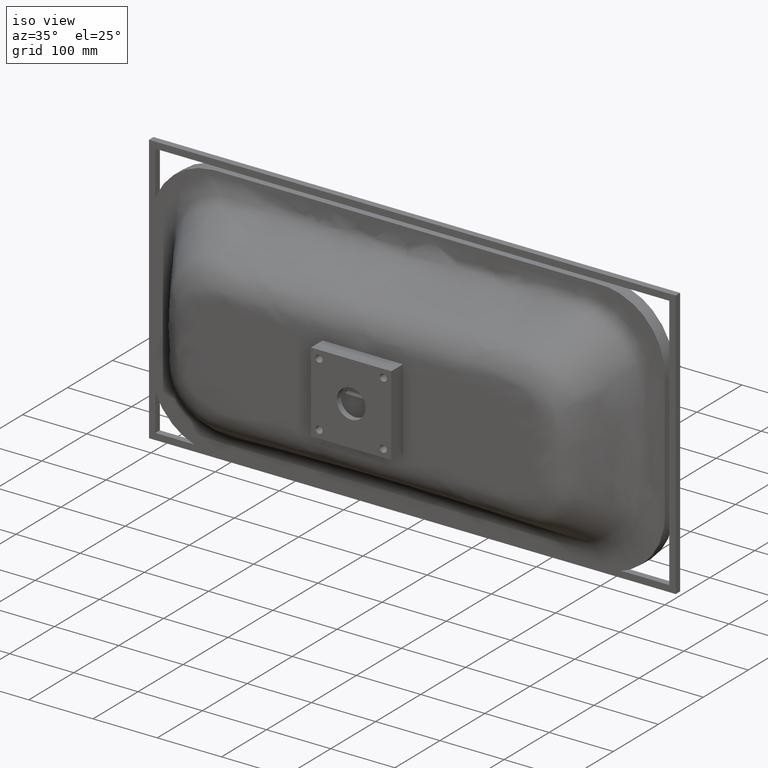
[diagram: clean part render]
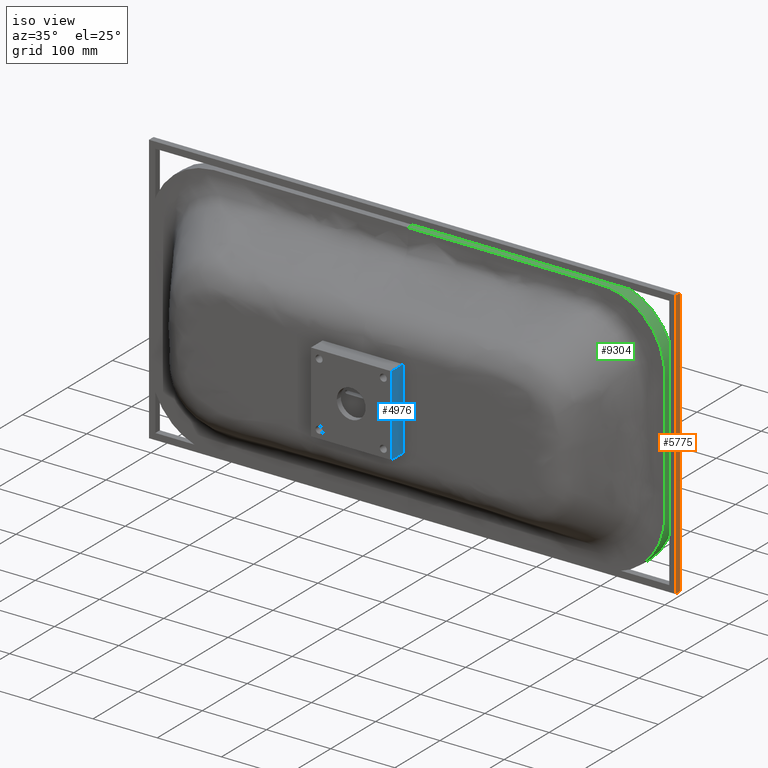
[diagram: same view with three faces highlighted in distinct colors, each labeled with its STEP entity id]
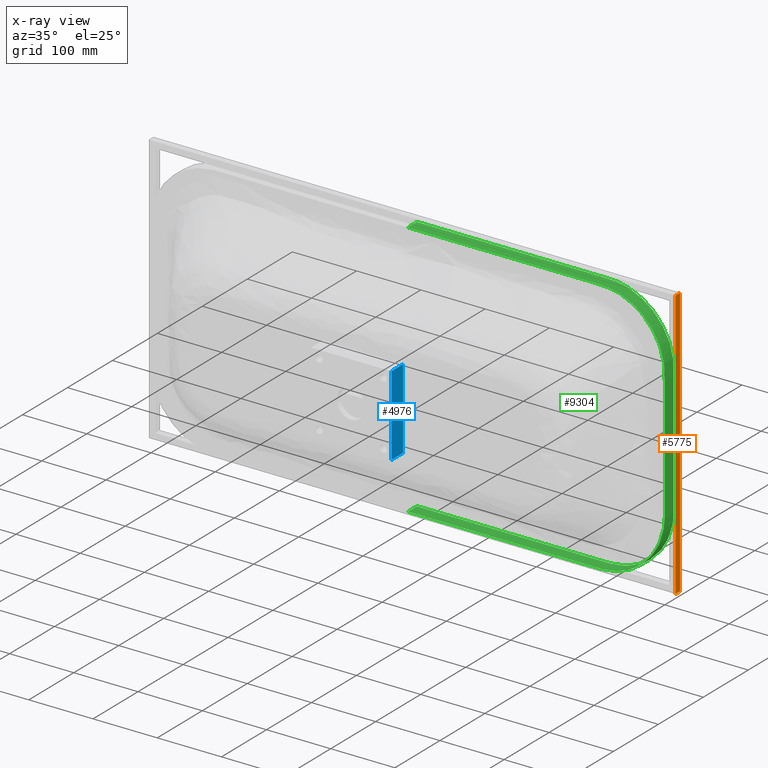
[diagram: x-ray of the same camera — body ghosted, the three highlighted faces saturated]
A machine part, iso view with three faces highlighted in distinct colors.
The next image is the same camera in x-ray (body ghosted, the three faces saturated) — at least one of them is partly hidden behind the body in this view.
Their STEP definitions:

[orange] entity #5775 — the highlighted planar face has unit normal (1, 0, -0).
#78 = DIRECTION ( 'NONE',  ( -2.775557561562891400E-015, 1.000000000000000000, -5.551115123125683100E-016 ) ) ;
#85 = CARTESIAN_POINT ( 'NONE',  ( 410.0000000000010800, 110.0000000000024000, 209.9999999999986600 ) ) ;
#115 = CARTESIAN_POINT ( 'NONE',  ( 409.9999999999996600, 120.0000000000021700, -210.0000000000014800 ) ) ;
#311 = ORIENTED_EDGE ( 'NONE', *, *, #2814, .F. ) ;
#627 = DIRECTION ( 'NONE',  ( -3.413935800722356400E-015, -5.286776307738838600E-016, -1.000000000000000000 ) ) ;
#1051 = CARTESIAN_POINT ( 'NONE',  ( 410.0000000000010800, 110.0000000000024000, 209.9999999999986600 ) ) ;
#1499 = EDGE_CURVE ( 'NONE', #5514, #8951, #8544, .T. ) ;
#1518 = CARTESIAN_POINT ( 'NONE',  ( 409.9999999999996600, 110.0000000000021700, -210.0000000000014800 ) ) ;
#2007 = CARTESIAN_POINT ( 'NONE',  ( 409.9999999999996600, 110.0000000000021700, -210.0000000000014800 ) ) ;
#2114 = DIRECTION ( 'NONE',  ( 2.775557561562889400E-015, -1.000000000000000000, -9.475575326385193400E-030 ) ) ;
#2122 = DIRECTION ( 'NONE',  ( 1.000000000000000000, 2.775557561562889400E-015, -3.413935800722357900E-015 ) ) ;
#2189 = PLANE ( 'NONE',  #7084 ) ;
#2196 = VERTEX_POINT ( 'NONE', #5873 ) ;
#2306 = CARTESIAN_POINT ( 'NONE',  ( 409.9999999999996600, 110.0000000000021700, -210.0000000000014800 ) ) ;
#2407 = FACE_OUTER_BOUND ( 'NONE', #9153, .T. ) ;
#2445 = ORIENTED_EDGE ( 'NONE', *, *, #8348, .T. ) ;
#2814 = EDGE_CURVE ( 'NONE', #8951, #5559, #7496, .T. ) ;
#3301 = ORIENTED_EDGE ( 'NONE', *, *, #8698, .T. ) ;
#3614 = ORIENTED_EDGE ( 'NONE', *, *, #1499, .F. ) ;
#4819 = LINE ( 'NONE', #2007, #5136 ) ;
#5018 = CARTESIAN_POINT ( 'NONE',  ( 410.0000000000010800, 120.0000000000024000, 209.9999999999986600 ) ) ;
#5136 = VECTOR ( 'NONE', #7441, 1000.000000000000000 ) ;
#5211 = VECTOR ( 'NONE', #627, 1000.000000000000000 ) ;
#5514 = VERTEX_POINT ( 'NONE', #85 ) ;
#5559 = VERTEX_POINT ( 'NONE', #115 ) ;
#5775 = ADVANCED_FACE ( 'NONE', ( #2407 ), #2189, .T. ) ;
#5873 = CARTESIAN_POINT ( 'NONE',  ( 409.9999999999996600, 110.0000000000021700, -210.0000000000014800 ) ) ;
#5968 = DIRECTION ( 'NONE',  ( -3.413935800722356400E-015, -5.286776307738838600E-016, -1.000000000000000000 ) ) ;
#6285 = CARTESIAN_POINT ( 'NONE',  ( 409.9999999999996600, 120.0000000000021700, -210.0000000000014800 ) ) ;
#6362 = LINE ( 'NONE', #1518, #5211 ) ;
#7071 = VECTOR ( 'NONE', #5968, 1000.000000000000000 ) ;
#7084 = AXIS2_PLACEMENT_3D ( 'NONE', #2306, #2122, #2114 ) ;
#7441 = DIRECTION ( 'NONE',  ( -2.775557561562891400E-015, 1.000000000000000000, -5.551115123125683100E-016 ) ) ;
#7496 = LINE ( 'NONE', #6285, #7071 ) ;
#8348 = EDGE_CURVE ( 'NONE', #5514, #2196, #6362, .T. ) ;
#8354 = VECTOR ( 'NONE', #78, 1000.000000000000000 ) ;
#8544 = LINE ( 'NONE', #1051, #8354 ) ;
#8698 = EDGE_CURVE ( 'NONE', #2196, #5559, #4819, .T. ) ;
#8951 = VERTEX_POINT ( 'NONE', #5018 ) ;
#9153 = EDGE_LOOP ( 'NONE', ( #311, #3614, #2445, #3301 ) ) ;

[blue] entity #4976 — the highlighted planar face has unit normal (-1, 0, 0).
#152 = VERTEX_POINT ( 'NONE', #1084 ) ;
#153 = CARTESIAN_POINT ( 'NONE',  ( 62.49999999999978700, -25.99999999999999600, -62.50000000000020600 ) ) ;
#193 = DIRECTION ( 'NONE',  ( 3.413935800722356400E-015, 0.0000000000000000000, 1.000000000000000000 ) ) ;
#200 = PLANE ( 'NONE',  #3352 ) ;
#221 = CARTESIAN_POINT ( 'NONE',  ( 62.49999999999978700, 0.0000000000000000000, -62.50000000000020600 ) ) ;
#229 = DIRECTION ( 'NONE',  ( -3.413935800722356400E-015, 0.0000000000000000000, -1.000000000000000000 ) ) ;
#243 = DIRECTION ( 'NONE',  ( -1.000000000000000000, 0.0000000000000000000, 3.413935800722356400E-015 ) ) ;
#368 = LINE ( 'NONE', #2332, #6092 ) ;
#413 = EDGE_LOOP ( 'NONE', ( #532, #10031, #1338, #1703 ) ) ;
#532 = ORIENTED_EDGE ( 'NONE', *, *, #5261, .T. ) ;
#539 = VERTEX_POINT ( 'NONE', #8892 ) ;
#1014 = DIRECTION ( 'NONE',  ( 0.0000000000000000000, -1.000000000000000000, -0.0000000000000000000 ) ) ;
#1084 = CARTESIAN_POINT ( 'NONE',  ( 62.49999999999978700, 0.0000000000000000000, -62.50000000000020600 ) ) ;
#1087 = CARTESIAN_POINT ( 'NONE',  ( 62.49999999999978700, 0.0000000000000000000, -62.50000000000020600 ) ) ;
#1338 = ORIENTED_EDGE ( 'NONE', *, *, #9091, .F. ) ;
#1703 = ORIENTED_EDGE ( 'NONE', *, *, #5674, .T. ) ;
#1900 = VERTEX_POINT ( 'NONE', #6911 ) ;
#2039 = EDGE_CURVE ( 'NONE', #152, #4397, #8286, .T. ) ;
#2303 = DIRECTION ( 'NONE',  ( 0.0000000000000000000, -1.000000000000000000, -0.0000000000000000000 ) ) ;
#2332 = CARTESIAN_POINT ( 'NONE',  ( 62.50000000000020600, 0.0000000000000000000, 62.49999999999978700 ) ) ;
#2350 = CARTESIAN_POINT ( 'NONE',  ( 62.49999999999978700, 0.0000000000000000000, -62.50000000000020600 ) ) ;
#3067 = DIRECTION ( 'NONE',  ( -3.413935800722356400E-015, 0.0000000000000000000, -1.000000000000000000 ) ) ;
#3352 = AXIS2_PLACEMENT_3D ( 'NONE', #221, #243, #193 ) ;
#3882 = VECTOR ( 'NONE', #1014, 1000.000000000000000 ) ;
#4397 = VERTEX_POINT ( 'NONE', #9016 ) ;
#4695 = VECTOR ( 'NONE', #3067, 1000.000000000000000 ) ;
#4862 = LINE ( 'NONE', #2350, #4695 ) ;
#4976 = ADVANCED_FACE ( 'NONE', ( #5193 ), #200, .F. ) ;
#5193 = FACE_OUTER_BOUND ( 'NONE', #413, .T. ) ;
#5261 = EDGE_CURVE ( 'NONE', #539, #4397, #6228, .T. ) ;
#5674 = EDGE_CURVE ( 'NONE', #1900, #539, #368, .T. ) ;
#6092 = VECTOR ( 'NONE', #2303, 1000.000000000000000 ) ;
#6221 = VECTOR ( 'NONE', #229, 1000.000000000000000 ) ;
#6228 = LINE ( 'NONE', #153, #6221 ) ;
#6911 = CARTESIAN_POINT ( 'NONE',  ( 62.50000000000020600, 0.0000000000000000000, 62.49999999999978700 ) ) ;
#8286 = LINE ( 'NONE', #1087, #3882 ) ;
#8892 = CARTESIAN_POINT ( 'NONE',  ( 62.50000000000020600, -25.99999999999999600, 62.49999999999978700 ) ) ;
#9016 = CARTESIAN_POINT ( 'NONE',  ( 62.49999999999978700, -25.99999999999999600, -62.50000000000020600 ) ) ;
#9091 = EDGE_CURVE ( 'NONE', #1900, #152, #4862, .T. ) ;
#10031 = ORIENTED_EDGE ( 'NONE', *, *, #2039, .F. ) ;

[green] entity #9304 — the highlighted face is a freeform B-spline surface patch.
#14 = CARTESIAN_POINT ( 'NONE',  ( -387.6607435241640500, 106.6666666666674200, 150.4493998604116600 ) ) ;
#17 = CARTESIAN_POINT ( 'NONE',  ( -30.00000000000068200, 113.3333333333339300, -199.9999999999999700 ) ) ;
#38 = CARTESIAN_POINT ( 'NONE',  ( -15.00000000000067300, 113.3333333333339400, -199.9999999999999700 ) ) ;
#68 = CARTESIAN_POINT ( 'NONE',  ( -5.000000000000730100, 113.3333333333339500, -200.0000000000000000 ) ) ;
#99 = CARTESIAN_POINT ( 'NONE',  ( -397.6520662592157600, 106.6666666666674000, 126.2865120157434000 ) ) ;
#135 = CARTESIAN_POINT ( 'NONE',  ( -6.784503514545292500E-013, 113.3333333333339500, -200.0000000000000000 ) ) ;
#240 = CARTESIAN_POINT ( 'NONE',  ( -6.775829897165408500E-013, 120.0000000000010500, -200.0000000000000000 ) ) ;
#249 = CARTESIAN_POINT ( 'NONE',  ( -400.0000000000003400, 106.6666666666673800, 108.8402994666678700 ) ) ;
#268 = ORIENTED_EDGE ( 'NONE', *, *, #2862, .F. ) ;
#269 = CARTESIAN_POINT ( 'NONE',  ( 2.210455197844870900E-013, 100.0000000000000000, 200.0000000000000300 ) ) ;
#272 = CARTESIAN_POINT ( 'NONE',  ( 4.999999999999293900, 120.0000000000010700, -200.0000000000000300 ) ) ;
#295 = CARTESIAN_POINT ( 'NONE',  ( -400.0000000000004000, 106.6666666666674400, 66.66666666648954700 ) ) ;
#309 = CARTESIAN_POINT ( 'NONE',  ( 14.99999999999931800, 120.0000000000010500, -200.0000000000000600 ) ) ;
#332 = CARTESIAN_POINT ( 'NONE',  ( 29.99999999999930400, 120.0000000000010900, -200.0000000000001100 ) ) ;
#346 = CARTESIAN_POINT ( 'NONE',  ( 44.99999999999938200, 120.0000000000011200, -200.0000000000001100 ) ) ;
#377 = CARTESIAN_POINT ( 'NONE',  ( 134.9999999999993200, 120.0000000000013400, -200.0000000000003400 ) ) ;
#396 = CARTESIAN_POINT ( 'NONE',  ( 219.9999999999991500, 120.0000000000017800, -200.0000000000004300 ) ) ;
#397 = CARTESIAN_POINT ( 'NONE',  ( -400.0000000000005700, 106.6666666666673500, -1.772693103418987400E-010 ) ) ;
#408 = CARTESIAN_POINT ( 'NONE',  ( -6.938893903907228400E-013, 120.0000000000012900, 200.0000000000000000 ) ) ;
#412 = CARTESIAN_POINT ( 'NONE',  ( 308.8402994666660100, 120.0000000000018800, -200.0000000000009900 ) ) ;
#427 = B_SPLINE_SURFACE_WITH_KNOTS ( 'NONE', 3, 3, ( 
 ( #1869, #2011, #1603, #1592, #1511, #1498, #1470, #1440, #1417, #1406, #1386, #1321, #1301, #1292, #1283, #1267, #1256, #1245, #1222, #1204, #1177, #1158, #1148, #1106, #1091, #1075, #1057, #999, #946, #934, #915, #838, #818, #776, #728, #697, #566, #553, #520, #511, #499, #477, #444, #412, #396, #377, #346, #332, #309, #272, #240 ),
 ( #135, #68, #38, #17, #9934, #9839, #9790, #9723, #9711, #9669, #9445, #8929, #8905, #8879, #8853, #8766, #8177, #8048, #8009, #7913, #7735, #7287, #7202, #6998, #6328, #6292, #6266, #6243, #5997, #5987, #5724, #5629, #5594, #5554, #5464, #5033, #4903, #4716, #4706, #4363, #3975, #3935, #3869, #3697, #3245, #3204, #3149, #3138, #3102, #3043, #3012 ),
 ( #3004, #2684, #2675, #2641, #2473, #2402, #2390, #2368, #1976, #1767, #1593, #1478, #1290, #1076, #439, #397, #295, #249, #99, #14, #9497, #8614, #3694, #10151, #10124, #10117, #10105, #10092, #10088, #10087, #10065, #10057, #10055, #10037, #10029, #10027, #10006, #9996, #9995, #9970, #9962, #9961, #9940, #9932, #9908, #9899, #9874, #9863, #9854, #9837, #9828 ),
 ( #9800, #9788, #9761, #9750, #9749, #9721, #9709, #9696, #9679, #9667, #9656, #9642, #9632, #9621, #9619, #9607, #9598, #9587, #9573, #9566, #9556, #9552, #9537, #9526, #9516, #9499, #9490, #9475, #9455, #9432, #9414, #9394, #9392, #9357, #9339, #9317, #9316, #9301, #9288, #9281, #9250, #9240, #9239, #9226, #9218, #9210, #9208, #9185, #9178, #9176, #9149 ) ),
 .UNSPECIFIED., .F., .T., .F.,
 ( 4, 4 ),
 ( 4, 1, 1, 1, 1, 2, 1, 1, 1, 1, 1, 2, 1, 2, 1, 1, 1, 1, 1, 2, 1, 2, 1, 1, 1, 1, 1, 2, 1, 2, 1, 1, 1, 1, 1, 2, 1, 1, 1, 1, 4 ),
 ( 0.0000000000000000000, 1.000000000000000000 ),
 ( 0.0000000000000000000, 0.006706903432371902300, 0.01341380686474358300, 0.02012071029711548500, 0.02682761372948738700, 0.1341380686474368300, 0.1459962756146732100, 0.1578544825819094800, 0.1697126895491458700, 0.1815708965163822500, 0.1934291034836185300, 0.2052873104508549100, 0.2499999999997610200, 0.2947126895491456500, 0.3065708965163819200, 0.3184291034836181900, 0.3302873104508545800, 0.3421455174180908500, 0.3540037243853271200, 0.3658619313525634000, 0.5000000000000000000, 0.6341380686474370500, 0.6459962756146733200, 0.6578544825819095900, 0.6697126895491458700, 0.6815708965163821400, 0.6934291034836184100, 0.7052873104508546900, 0.7499999999999830100, 0.7947126895491455300, 0.8065708965163818100, 0.8184291034836180800, 0.8302873104508543500, 0.8421455174180906300, 0.8540037243853270100, 0.8658619313525632900, 0.9731723862705126100, 0.9798792897028845200, 0.9865861931352563100, 0.9932930965676282100, 1.000000000000000000 ),
 .UNSPECIFIED. ) ;
#439 = CARTESIAN_POINT ( 'NONE',  ( -400.0000000000008500, 106.6666666666672500, -66.66666666684383800 ) ) ;
#444 = CARTESIAN_POINT ( 'NONE',  ( 326.2865120157414900, 120.0000000000018900, -197.6520662592164700 ) ) ;
#477 = CARTESIAN_POINT ( 'NONE',  ( 350.4493998604099300, 120.0000000000020500, -187.6607435241647600 ) ) ;
#499 = CARTESIAN_POINT ( 'NONE',  ( 371.5384813318378300, 120.0000000000020500, -171.5384813318397300 ) ) ;
#511 = CARTESIAN_POINT ( 'NONE',  ( 387.6607435241632500, 120.0000000000021700, -150.4493998604117500 ) ) ;
#520 = CARTESIAN_POINT ( 'NONE',  ( 397.6520662592150800, 120.0000000000021700, -126.2865120157435100 ) ) ;
#553 = CARTESIAN_POINT ( 'NONE',  ( 399.9999999999996600, 120.0000000000022000, -108.8402994666680100 ) ) ;
#566 = CARTESIAN_POINT ( 'NONE',  ( 400.0000000000000000, 120.0000000000022200, -66.66666666665528900 ) ) ;
#592 = B_SPLINE_CURVE_WITH_KNOTS ( 'NONE', 3,
 ( #6322, #6185, #6411, #6455, #5567, #4792, #6609, #6448, #8824, #4698, #5412, #3595, #3561, #5249, #3619, #3927, #3525, #3725, #3660, #6522, #6593, #6578, #6509, #6370, #6558, #6319, #6493 ),
 .UNSPECIFIED., .F., .F.,
 ( 4, 2, 1, 1, 1, 1, 1, 2, 1, 2, 1, 1, 1, 1, 1, 2, 1, 1, 1, 1, 4 ),
 ( 0.5000000000000000000, 0.6341380686474370500, 0.6459962756146733200, 0.6578544825819095900, 0.6697126895491458700, 0.6815708965163821400, 0.6934291034836184100, 0.7052873104508546900, 0.7499999999999830100, 0.7947126895491455300, 0.8065708965163818100, 0.8184291034836180800, 0.8302873104508543500, 0.8421455174180906300, 0.8540037243853270100, 0.8658619313525632900, 0.9731723862705126100, 0.9798792897028845200, 0.9865861931352563100, 0.9932930965676282100, 1.000000000000000000 ),
 .UNSPECIFIED. ) ;
#697 = CARTESIAN_POINT ( 'NONE',  ( 400.0000000000004000, 120.0000000000023300, 1.132566262995737700E-011 ) ) ;
#728 = CARTESIAN_POINT ( 'NONE',  ( 400.0000000000004500, 120.0000000000023900, 66.66666666667794100 ) ) ;
#776 = CARTESIAN_POINT ( 'NONE',  ( 400.0000000000004000, 120.0000000000023000, 108.8402994666651300 ) ) ;
#818 = CARTESIAN_POINT ( 'NONE',  ( 397.6520662592157600, 120.0000000000023400, 126.2865120157406300 ) ) ;
#838 = CARTESIAN_POINT ( 'NONE',  ( 387.6607435241642200, 120.0000000000023300, 150.4493998604089000 ) ) ;
#915 = CARTESIAN_POINT ( 'NONE',  ( 371.5384813318391400, 120.0000000000022700, 171.5384813318371200 ) ) ;
#934 = CARTESIAN_POINT ( 'NONE',  ( 350.4493998604112300, 120.0000000000022600, 187.6607435241623400 ) ) ;
#946 = CARTESIAN_POINT ( 'NONE',  ( 326.2865120157429100, 120.0000000000021500, 197.6520662592141700 ) ) ;
#999 = CARTESIAN_POINT ( 'NONE',  ( 308.8402994666673700, 120.0000000000021000, 199.9999999999987800 ) ) ;
#1057 = CARTESIAN_POINT ( 'NONE',  ( 199.9999999999999100, 120.0000000000018600, 199.9999999999996600 ) ) ;
#1075 = CARTESIAN_POINT ( 'NONE',  ( -4.343747583845929500E-013, 120.0000000000012100, 199.9999999999998900 ) ) ;
#1076 = CARTESIAN_POINT ( 'NONE',  ( -400.0000000000010800, 106.6666666666672500, -108.8402994666652600 ) ) ;
#1091 = CARTESIAN_POINT ( 'NONE',  ( -200.0000000000005400, 120.0000000000009900, 200.0000000000007700 ) ) ;
#1106 = CARTESIAN_POINT ( 'NONE',  ( -308.8402994666668100, 120.0000000000004000, 200.0000000000009400 ) ) ;
#1148 = CARTESIAN_POINT ( 'NONE',  ( -326.2865120157422900, 120.0000000000003600, 197.6520662592165000 ) ) ;
#1158 = CARTESIAN_POINT ( 'NONE',  ( -350.4493998604106100, 120.0000000000002800, 187.6607435241647600 ) ) ;
#1177 = CARTESIAN_POINT ( 'NONE',  ( -371.5384813318384500, 120.0000000000002000, 171.5384813318397300 ) ) ;
#1204 = CARTESIAN_POINT ( 'NONE',  ( -387.6607435241640500, 120.0000000000001700, 150.4493998604116600 ) ) ;
#1222 = CARTESIAN_POINT ( 'NONE',  ( -397.6520662592155900, 120.0000000000001100, 126.2865120157434000 ) ) ;
#1245 = CARTESIAN_POINT ( 'NONE',  ( -400.0000000000002800, 120.0000000000000900, 108.8402994666678900 ) ) ;
#1256 = CARTESIAN_POINT ( 'NONE',  ( -400.0000000000001100, 120.0000000000000900, 66.66666666648949000 ) ) ;
#1267 = CARTESIAN_POINT ( 'NONE',  ( -400.0000000000002800, 120.0000000000000000, -1.773942104321690700E-010 ) ) ;
#1283 = CARTESIAN_POINT ( 'NONE',  ( -400.0000000000008000, 119.9999999999999600, -66.66666666684393800 ) ) ;
#1290 = CARTESIAN_POINT ( 'NONE',  ( -397.6520662592165000, 106.6666666666672300, -126.2865120157407500 ) ) ;
#1292 = CARTESIAN_POINT ( 'NONE',  ( -400.0000000000010200, 119.9999999999999900, -108.8402994666652600 ) ) ;
#1301 = CARTESIAN_POINT ( 'NONE',  ( -397.6520662592165500, 119.9999999999999400, -126.2865120157407800 ) ) ;
#1321 = CARTESIAN_POINT ( 'NONE',  ( -387.6607435241649000, 120.0000000000000300, -150.4493998604091000 ) ) ;
#1386 = CARTESIAN_POINT ( 'NONE',  ( -371.5384813318397100, 120.0000000000000000, -171.5384813318372900 ) ) ;
#1394 = VERTEX_POINT ( 'NONE', #408 ) ;
#1406 = CARTESIAN_POINT ( 'NONE',  ( -350.4493998604119700, 120.0000000000001100, -187.6607435241624000 ) ) ;
#1417 = CARTESIAN_POINT ( 'NONE',  ( -326.2865120157435400, 120.0000000000001100, -197.6520662592143400 ) ) ;
#1440 = CARTESIAN_POINT ( 'NONE',  ( -308.8402994666680000, 120.0000000000001700, -199.9999999999988900 ) ) ;
#1470 = CARTESIAN_POINT ( 'NONE',  ( -220.0000000000015300, 120.0000000000004700, -199.9999999999996300 ) ) ;
#1478 = CARTESIAN_POINT ( 'NONE',  ( -387.6607435241649000, 106.6666666666672700, -150.4493998604091300 ) ) ;
#1498 = CARTESIAN_POINT ( 'NONE',  ( -135.0000000000010500, 120.0000000000006700, -199.9999999999996300 ) ) ;
#1511 = CARTESIAN_POINT ( 'NONE',  ( -45.00000000000069600, 120.0000000000009100, -199.9999999999998600 ) ) ;
#1592 = CARTESIAN_POINT ( 'NONE',  ( -30.00000000000068600, 120.0000000000009500, -199.9999999999998900 ) ) ;
#1593 = CARTESIAN_POINT ( 'NONE',  ( -371.5384813318397600, 106.6666666666671700, -171.5384813318372300 ) ) ;
#1603 = CARTESIAN_POINT ( 'NONE',  ( -15.00000000000067900, 120.0000000000009900, -199.9999999999999400 ) ) ;
#1767 = CARTESIAN_POINT ( 'NONE',  ( -350.4493998604119700, 106.6666666666672100, -187.6607435241624000 ) ) ;
#1786 = VERTEX_POINT ( 'NONE', #269 ) ;
#1836 = ORIENTED_EDGE ( 'NONE', *, *, #7316, .T. ) ;
#1869 = CARTESIAN_POINT ( 'NONE',  ( -6.775829897165408500E-013, 120.0000000000010500, -200.0000000000000000 ) ) ;
#1976 = CARTESIAN_POINT ( 'NONE',  ( -326.2865120157435400, 106.6666666666671300, -197.6520662592143400 ) ) ;
#2011 = CARTESIAN_POINT ( 'NONE',  ( -5.000000000000732700, 120.0000000000010400, -199.9999999999999700 ) ) ;
#2368 = CARTESIAN_POINT ( 'NONE',  ( -308.8402994666680600, 106.6666666666671400, -199.9999999999988900 ) ) ;
#2390 = CARTESIAN_POINT ( 'NONE',  ( -220.0000000000021000, 106.6666666666670600, -199.9999999999993500 ) ) ;
#2402 = CARTESIAN_POINT ( 'NONE',  ( -135.0000000000011900, 106.6666666666670000, -199.9999999999999400 ) ) ;
#2413 = B_SPLINE_CURVE_WITH_KNOTS ( 'NONE', 3,
 ( #9329, #9344, #9291, #9283, #9280, #9272, #9270, #9254, #9242, #9232, #9229, #9221, #9212, #9209, #9202, #9200, #9189, #9180, #9177, #9163, #9154, #9142, #9129, #9127, #9109, #9095, #9083 ),
 .UNSPECIFIED., .F., .F.,
 ( 4, 2, 1, 1, 1, 1, 1, 2, 1, 2, 1, 1, 1, 1, 1, 2, 1, 1, 1, 1, 4 ),
 ( 0.5000000000000002200, 0.6341380686474371600, 0.6459962756146735400, 0.6578544825819097100, 0.6697126895491459800, 0.6815708965163822500, 0.6934291034836185300, 0.7052873104508548000, 0.7499999999999831200, 0.7947126895491456500, 0.8065708965163819200, 0.8184291034836181900, 0.8302873104508543500, 0.8421455174180907400, 0.8540037243853271200, 0.8658619313525632900, 0.9731723862705126100, 0.9798792897028845200, 0.9865861931352563100, 0.9932930965676282100, 1.000000000000000000 ),
 .UNSPECIFIED. ) ;
#2473 = CARTESIAN_POINT ( 'NONE',  ( -45.00000000000070300, 106.6666666666669100, -200.0000000000000300 ) ) ;
#2617 = ORIENTED_EDGE ( 'NONE', *, *, #9385, .F. ) ;
#2641 = CARTESIAN_POINT ( 'NONE',  ( -30.00000000000067900, 106.6666666666669100, -200.0000000000000300 ) ) ;
#2675 = CARTESIAN_POINT ( 'NONE',  ( -15.00000000000066800, 106.6666666666669000, -200.0000000000000300 ) ) ;
#2684 = CARTESIAN_POINT ( 'NONE',  ( -5.000000000000727400, 106.6666666666669000, -200.0000000000000000 ) ) ;
#2818 = EDGE_CURVE ( 'NONE', #1394, #1786, #6375, .T. ) ;
#2862 = EDGE_CURVE ( 'NONE', #1394, #3744, #592, .T. ) ;
#3004 = CARTESIAN_POINT ( 'NONE',  ( -6.793177131925176600E-013, 106.6666666666668800, -200.0000000000000000 ) ) ;
#3012 = CARTESIAN_POINT ( 'NONE',  ( -6.784503514545292500E-013, 113.3333333333339500, -200.0000000000000000 ) ) ;
#3043 = CARTESIAN_POINT ( 'NONE',  ( 4.999999999999289500, 113.3333333333339500, -200.0000000000000300 ) ) ;
#3102 = CARTESIAN_POINT ( 'NONE',  ( 14.99999999999930500, 113.3333333333339500, -200.0000000000000300 ) ) ;
#3138 = CARTESIAN_POINT ( 'NONE',  ( 29.99999999999928200, 113.3333333333339700, -200.0000000000000600 ) ) ;
#3149 = CARTESIAN_POINT ( 'NONE',  ( 44.99999999999934600, 113.3333333333339800, -200.0000000000000600 ) ) ;
#3204 = CARTESIAN_POINT ( 'NONE',  ( 134.9999999999992300, 113.3333333333340800, -200.0000000000002600 ) ) ;
#3245 = CARTESIAN_POINT ( 'NONE',  ( 219.9999999999990900, 113.3333333333343100, -200.0000000000005700 ) ) ;
#3525 = CARTESIAN_POINT ( 'NONE',  ( 371.5384813318378300, 120.0000000000020500, -171.5384813318397300 ) ) ;
#3561 = CARTESIAN_POINT ( 'NONE',  ( 400.0000000000000000, 120.0000000000022200, -66.66666666665530300 ) ) ;
#3595 = CARTESIAN_POINT ( 'NONE',  ( 400.0000000000004000, 120.0000000000023300, 1.132566262995738300E-011 ) ) ;
#3619 = CARTESIAN_POINT ( 'NONE',  ( 397.6520662592150800, 120.0000000000021700, -126.2865120157435100 ) ) ;
#3660 = CARTESIAN_POINT ( 'NONE',  ( 326.2865120157414900, 120.0000000000018900, -197.6520662592165000 ) ) ;
#3694 = CARTESIAN_POINT ( 'NONE',  ( -326.2865120157422900, 106.6666666666673400, 197.6520662592164400 ) ) ;
#3697 = CARTESIAN_POINT ( 'NONE',  ( 308.8402994666659500, 113.3333333333342700, -200.0000000000009900 ) ) ;
#3725 = CARTESIAN_POINT ( 'NONE',  ( 350.4493998604099300, 120.0000000000020500, -187.6607435241647600 ) ) ;
#3744 = VERTEX_POINT ( 'NONE', #9604 ) ;
#3787 = CARTESIAN_POINT ( 'NONE',  ( 2.210455197844870900E-013, 100.0000000000000000, 200.0000000000000300 ) ) ;
#3869 = CARTESIAN_POINT ( 'NONE',  ( 326.2865120157414400, 113.3333333333342500, -197.6520662592164700 ) ) ;
#3927 = CARTESIAN_POINT ( 'NONE',  ( 387.6607435241632500, 120.0000000000021700, -150.4493998604117700 ) ) ;
#3935 = CARTESIAN_POINT ( 'NONE',  ( 350.4493998604098700, 113.3333333333343400, -187.6607435241647900 ) ) ;
#3975 = CARTESIAN_POINT ( 'NONE',  ( 371.5384813318378300, 113.3333333333342900, -171.5384813318397300 ) ) ;
#4190 = EDGE_LOOP ( 'NONE', ( #268, #6045, #1836, #2617 ) ) ;
#4220 = VERTEX_POINT ( 'NONE', #9271 ) ;
#4363 = CARTESIAN_POINT ( 'NONE',  ( 387.6607435241632500, 113.3333333333343800, -150.4493998604117500 ) ) ;
#4680 = FACE_OUTER_BOUND ( 'NONE', #4190, .T. ) ;
#4698 = CARTESIAN_POINT ( 'NONE',  ( 400.0000000000004000, 120.0000000000023000, 108.8402994666651400 ) ) ;
#4706 = CARTESIAN_POINT ( 'NONE',  ( 397.6520662592150800, 113.3333333333343500, -126.2865120157435100 ) ) ;
#4716 = CARTESIAN_POINT ( 'NONE',  ( 399.9999999999996600, 113.3333333333343900, -108.8402994666680100 ) ) ;
#4792 = CARTESIAN_POINT ( 'NONE',  ( 350.4493998604112300, 120.0000000000022600, 187.6607435241623700 ) ) ;
#4903 = CARTESIAN_POINT ( 'NONE',  ( 399.9999999999999400, 113.3333333333344100, -66.66666666665524600 ) ) ;
#5033 = CARTESIAN_POINT ( 'NONE',  ( 400.0000000000002300, 113.3333333333344900, 1.137886081655400100E-011 ) ) ;
#5249 = CARTESIAN_POINT ( 'NONE',  ( 399.9999999999996600, 120.0000000000022000, -108.8402994666680300 ) ) ;
#5412 = CARTESIAN_POINT ( 'NONE',  ( 400.0000000000004500, 120.0000000000023900, 66.66666666667795500 ) ) ;
#5464 = CARTESIAN_POINT ( 'NONE',  ( 400.0000000000002800, 113.3333333333345400, 66.66666666667795500 ) ) ;
#5511 = CARTESIAN_POINT ( 'NONE',  ( -4.371503159461553900E-013, 106.6666666666671100, 200.0000000000000600 ) ) ;
#5554 = CARTESIAN_POINT ( 'NONE',  ( 400.0000000000003400, 113.3333333333344800, 108.8402994666651300 ) ) ;
#5567 = CARTESIAN_POINT ( 'NONE',  ( 326.2865120157429100, 120.0000000000021500, 197.6520662592141700 ) ) ;
#5594 = CARTESIAN_POINT ( 'NONE',  ( 397.6520662592157600, 113.3333333333345100, 126.2865120157406300 ) ) ;
#5629 = CARTESIAN_POINT ( 'NONE',  ( 387.6607435241642200, 113.3333333333345200, 150.4493998604089300 ) ) ;
#5724 = CARTESIAN_POINT ( 'NONE',  ( 371.5384813318390800, 113.3333333333344900, 171.5384813318371500 ) ) ;
#5987 = CARTESIAN_POINT ( 'NONE',  ( 350.4493998604112300, 113.3333333333345200, 187.6607435241623100 ) ) ;
#5997 = CARTESIAN_POINT ( 'NONE',  ( 326.2865120157429100, 113.3333333333344700, 197.6520662592141900 ) ) ;
#6045 = ORIENTED_EDGE ( 'NONE', *, *, #2818, .T. ) ;
#6185 = CARTESIAN_POINT ( 'NONE',  ( 99.99999999999957400, 120.0000000000015300, 199.9999999999998000 ) ) ;
#6218 = CARTESIAN_POINT ( 'NONE',  ( -6.938893903907228400E-013, 120.0000000000012900, 200.0000000000000000 ) ) ;
#6243 = CARTESIAN_POINT ( 'NONE',  ( 308.8402994666673700, 113.3333333333344700, 199.9999999999987800 ) ) ;
#6266 = CARTESIAN_POINT ( 'NONE',  ( 200.0000000000000600, 113.3333333333343500, 199.9999999999996600 ) ) ;
#6292 = CARTESIAN_POINT ( 'NONE',  ( -2.146431180941967700E-013, 113.3333333333341500, 199.9999999999998900 ) ) ;
#6296 = CARTESIAN_POINT ( 'NONE',  ( -5.759281940242999600E-013, 113.3333333333342200, 200.0000000000000600 ) ) ;
#6319 = CARTESIAN_POINT ( 'NONE',  ( 4.999999999999293900, 120.0000000000010700, -200.0000000000000300 ) ) ;
#6322 = CARTESIAN_POINT ( 'NONE',  ( -6.938893903907228400E-013, 120.0000000000012900, 200.0000000000000000 ) ) ;
#6328 = CARTESIAN_POINT ( 'NONE',  ( -200.0000000000005400, 113.3333333333342400, 200.0000000000007400 ) ) ;
#6370 = CARTESIAN_POINT ( 'NONE',  ( 29.99999999999930400, 120.0000000000010900, -200.0000000000001100 ) ) ;
#6375 = B_SPLINE_CURVE_WITH_KNOTS ( 'NONE', 3,
 ( #6218, #6296, #5511, #3787 ),
 .UNSPECIFIED., .F., .F.,
 ( 4, 4 ),
 ( 0.0000000000000000000, 1.000000000000000000 ),
 .UNSPECIFIED. ) ;
#6411 = CARTESIAN_POINT ( 'NONE',  ( 199.9999999999999100, 120.0000000000018600, 199.9999999999996600 ) ) ;
#6448 = CARTESIAN_POINT ( 'NONE',  ( 387.6607435241642200, 120.0000000000023300, 150.4493998604089000 ) ) ;
#6455 = CARTESIAN_POINT ( 'NONE',  ( 308.8402994666673700, 120.0000000000021000, 199.9999999999987800 ) ) ;
#6493 = CARTESIAN_POINT ( 'NONE',  ( -6.775829897165408500E-013, 120.0000000000010500, -200.0000000000000000 ) ) ;
#6509 = CARTESIAN_POINT ( 'NONE',  ( 44.99999999999938200, 120.0000000000011200, -200.0000000000001100 ) ) ;
#6522 = CARTESIAN_POINT ( 'NONE',  ( 308.8402994666660100, 120.0000000000018800, -200.0000000000010200 ) ) ;
#6558 = CARTESIAN_POINT ( 'NONE',  ( 14.99999999999931800, 120.0000000000010500, -200.0000000000000600 ) ) ;
#6578 = CARTESIAN_POINT ( 'NONE',  ( 134.9999999999993200, 120.0000000000013400, -200.0000000000003400 ) ) ;
#6593 = CARTESIAN_POINT ( 'NONE',  ( 219.9999999999991500, 120.0000000000017800, -200.0000000000004300 ) ) ;
#6609 = CARTESIAN_POINT ( 'NONE',  ( 371.5384813318391400, 120.0000000000022700, 171.5384813318371500 ) ) ;
#6998 = CARTESIAN_POINT ( 'NONE',  ( -308.8402994666668100, 113.3333333333339400, 200.0000000000009400 ) ) ;
#7202 = CARTESIAN_POINT ( 'NONE',  ( -326.2865120157422900, 113.3333333333339300, 197.6520662592164700 ) ) ;
#7287 = CARTESIAN_POINT ( 'NONE',  ( -350.4493998604106100, 113.3333333333339300, 187.6607435241647300 ) ) ;
#7316 = EDGE_CURVE ( 'NONE', #1786, #4220, #2413, .T. ) ;
#7735 = CARTESIAN_POINT ( 'NONE',  ( -371.5384813318385100, 113.3333333333338400, 171.5384813318397300 ) ) ;
#7913 = CARTESIAN_POINT ( 'NONE',  ( -387.6607435241640500, 113.3333333333338400, 150.4493998604116600 ) ) ;
#8009 = CARTESIAN_POINT ( 'NONE',  ( -397.6520662592157000, 113.3333333333338000, 126.2865120157434000 ) ) ;
#8048 = CARTESIAN_POINT ( 'NONE',  ( -400.0000000000002800, 113.3333333333337500, 108.8402994666678900 ) ) ;
#8177 = CARTESIAN_POINT ( 'NONE',  ( -400.0000000000002800, 113.3333333333337800, 66.66666666648951900 ) ) ;
#8614 = CARTESIAN_POINT ( 'NONE',  ( -350.4493998604106100, 106.6666666666674100, 187.6607435241647000 ) ) ;
#8766 = CARTESIAN_POINT ( 'NONE',  ( -400.0000000000004000, 113.3333333333337300, -1.773317603870339600E-010 ) ) ;
#8824 = CARTESIAN_POINT ( 'NONE',  ( 397.6520662592157600, 120.0000000000023400, 126.2865120157406300 ) ) ;
#8853 = CARTESIAN_POINT ( 'NONE',  ( -400.0000000000008500, 113.3333333333336400, -66.66666666684389500 ) ) ;
#8862 = CARTESIAN_POINT ( 'NONE',  ( -6.801850749305060600E-013, 99.99999999999978700, -200.0000000000000000 ) ) ;
#8879 = CARTESIAN_POINT ( 'NONE',  ( -400.0000000000010200, 113.3333333333336600, -108.8402994666652600 ) ) ;
#8893 = CARTESIAN_POINT ( 'NONE',  ( -6.793177131925176600E-013, 106.6666666666668800, -200.0000000000000000 ) ) ;
#8905 = CARTESIAN_POINT ( 'NONE',  ( -397.6520662592165500, 113.3333333333336100, -126.2865120157407800 ) ) ;
#8929 = CARTESIAN_POINT ( 'NONE',  ( -387.6607435241649000, 113.3333333333336700, -150.4493998604091300 ) ) ;
#9080 = CARTESIAN_POINT ( 'NONE',  ( -6.784503514545292500E-013, 113.3333333333339500, -200.0000000000000000 ) ) ;
#9083 = CARTESIAN_POINT ( 'NONE',  ( -6.801850749305060600E-013, 99.99999999999978700, -200.0000000000000000 ) ) ;
#9095 = CARTESIAN_POINT ( 'NONE',  ( 4.999999999999281500, 99.99999999999977300, -200.0000000000000000 ) ) ;
#9109 = CARTESIAN_POINT ( 'NONE',  ( 14.99999999999927900, 99.99999999999971600, -199.9999999999999400 ) ) ;
#9127 = CARTESIAN_POINT ( 'NONE',  ( 29.99999999999923600, 99.99999999999968700, -199.9999999999999100 ) ) ;
#9129 = CARTESIAN_POINT ( 'NONE',  ( 44.99999999999928200, 99.99999999999965900, -199.9999999999999400 ) ) ;
#9140 = CARTESIAN_POINT ( 'NONE',  ( -6.775829897165408500E-013, 120.0000000000010500, -200.0000000000000000 ) ) ;
#9142 = CARTESIAN_POINT ( 'NONE',  ( 134.9999999999990900, 99.99999999999941700, -200.0000000000001100 ) ) ;
#9149 = CARTESIAN_POINT ( 'NONE',  ( -6.801850749305060600E-013, 99.99999999999978700, -200.0000000000000000 ) ) ;
#9154 = CARTESIAN_POINT ( 'NONE',  ( 219.9999999999989500, 99.99999999999926100, -200.0000000000008500 ) ) ;
#9163 = CARTESIAN_POINT ( 'NONE',  ( 308.8402994666659000, 99.99999999999890600, -200.0000000000009900 ) ) ;
#9176 = CARTESIAN_POINT ( 'NONE',  ( 4.999999999999281500, 99.99999999999977300, -200.0000000000000000 ) ) ;
#9177 = CARTESIAN_POINT ( 'NONE',  ( 326.2865120157413800, 99.99999999999886300, -197.6520662592164700 ) ) ;
#9178 = CARTESIAN_POINT ( 'NONE',  ( 14.99999999999927900, 99.99999999999971600, -199.9999999999999400 ) ) ;
#9180 = CARTESIAN_POINT ( 'NONE',  ( 350.4493998604097600, 99.99999999999883500, -187.6607435241648400 ) ) ;
#9185 = CARTESIAN_POINT ( 'NONE',  ( 29.99999999999923600, 99.99999999999968700, -199.9999999999999100 ) ) ;
#9189 = CARTESIAN_POINT ( 'NONE',  ( 371.5384813318378300, 99.99999999999873500, -171.5384813318397900 ) ) ;
#9200 = CARTESIAN_POINT ( 'NONE',  ( 387.6607435241632500, 99.99999999999876400, -150.4493998604117200 ) ) ;
#9202 = CARTESIAN_POINT ( 'NONE',  ( 397.6520662592150800, 99.99999999999867800, -126.2865120157435100 ) ) ;
#9208 = CARTESIAN_POINT ( 'NONE',  ( 44.99999999999928200, 99.99999999999965900, -199.9999999999999400 ) ) ;
#9209 = CARTESIAN_POINT ( 'NONE',  ( 399.9999999999996000, 99.99999999999872100, -108.8402994666680100 ) ) ;
#9210 = CARTESIAN_POINT ( 'NONE',  ( 134.9999999999990900, 99.99999999999941700, -200.0000000000001100 ) ) ;
#9212 = CARTESIAN_POINT ( 'NONE',  ( 399.9999999999998900, 99.99999999999874900, -66.66666666665513200 ) ) ;
#9218 = CARTESIAN_POINT ( 'NONE',  ( 219.9999999999989500, 99.99999999999926100, -200.0000000000008500 ) ) ;
#9221 = CARTESIAN_POINT ( 'NONE',  ( 399.9999999999999400, 99.99999999999880600, 1.148525718974724400E-011 ) ) ;
#9226 = CARTESIAN_POINT ( 'NONE',  ( 308.8402994666659000, 99.99999999999890600, -200.0000000000009900 ) ) ;
#9229 = CARTESIAN_POINT ( 'NONE',  ( 400.0000000000000000, 99.99999999999880600, 66.66666666667795500 ) ) ;
#9232 = CARTESIAN_POINT ( 'NONE',  ( 400.0000000000002800, 99.99999999999882000, 108.8402994666651400 ) ) ;
#9239 = CARTESIAN_POINT ( 'NONE',  ( 326.2865120157413800, 99.99999999999886300, -197.6520662592164700 ) ) ;
#9240 = CARTESIAN_POINT ( 'NONE',  ( 350.4493998604097600, 99.99999999999883500, -187.6607435241648400 ) ) ;
#9242 = CARTESIAN_POINT ( 'NONE',  ( 397.6520662592157600, 99.99999999999884900, 126.2865120157406000 ) ) ;
#9250 = CARTESIAN_POINT ( 'NONE',  ( 371.5384813318378300, 99.99999999999873500, -171.5384813318397900 ) ) ;
#9254 = CARTESIAN_POINT ( 'NONE',  ( 387.6607435241641600, 99.99999999999889200, 150.4493998604089900 ) ) ;
#9270 = CARTESIAN_POINT ( 'NONE',  ( 371.5384813318390200, 99.99999999999894800, 171.5384813318371800 ) ) ;
#9271 = CARTESIAN_POINT ( 'NONE',  ( -6.801850749305060600E-013, 99.99999999999978700, -200.0000000000000000 ) ) ;
#9272 = CARTESIAN_POINT ( 'NONE',  ( 350.4493998604112300, 99.99999999999903400, 187.6607435241623100 ) ) ;
#9280 = CARTESIAN_POINT ( 'NONE',  ( 326.2865120157428600, 99.99999999999906200, 197.6520662592142500 ) ) ;
#9281 = CARTESIAN_POINT ( 'NONE',  ( 387.6607435241632500, 99.99999999999876400, -150.4493998604117200 ) ) ;
#9283 = CARTESIAN_POINT ( 'NONE',  ( 308.8402994666673200, 99.99999999999914700, 199.9999999999987800 ) ) ;
#9288 = CARTESIAN_POINT ( 'NONE',  ( 397.6520662592150800, 99.99999999999867800, -126.2865120157435100 ) ) ;
#9291 = CARTESIAN_POINT ( 'NONE',  ( 200.0000000000004800, 99.99999999999934600, 199.9999999999996600 ) ) ;
#9301 = CARTESIAN_POINT ( 'NONE',  ( 399.9999999999996000, 99.99999999999872100, -108.8402994666680100 ) ) ;
#9304 = ADVANCED_FACE ( 'NONE', ( #4680 ), #427, .T. ) ;
#9316 = CARTESIAN_POINT ( 'NONE',  ( 399.9999999999998900, 99.99999999999874900, -66.66666666665513200 ) ) ;
#9317 = CARTESIAN_POINT ( 'NONE',  ( 399.9999999999999400, 99.99999999999880600, 1.148525718974724400E-011 ) ) ;
#9329 = CARTESIAN_POINT ( 'NONE',  ( 2.210455197844870900E-013, 100.0000000000000000, 200.0000000000000300 ) ) ;
#9339 = CARTESIAN_POINT ( 'NONE',  ( 400.0000000000000000, 99.99999999999880600, 66.66666666667795500 ) ) ;
#9344 = CARTESIAN_POINT ( 'NONE',  ( 100.0000000000004400, 99.99999999999967300, 199.9999999999998000 ) ) ;
#9357 = CARTESIAN_POINT ( 'NONE',  ( 400.0000000000002800, 99.99999999999882000, 108.8402994666651400 ) ) ;
#9385 = EDGE_CURVE ( 'NONE', #3744, #4220, #10085, .T. ) ;
#9392 = CARTESIAN_POINT ( 'NONE',  ( 397.6520662592157600, 99.99999999999884900, 126.2865120157406000 ) ) ;
#9394 = CARTESIAN_POINT ( 'NONE',  ( 387.6607435241641600, 99.99999999999889200, 150.4493998604089900 ) ) ;
#9414 = CARTESIAN_POINT ( 'NONE',  ( 371.5384813318390200, 99.99999999999894800, 171.5384813318371800 ) ) ;
#9432 = CARTESIAN_POINT ( 'NONE',  ( 350.4493998604112300, 99.99999999999903400, 187.6607435241623100 ) ) ;
#9445 = CARTESIAN_POINT ( 'NONE',  ( -371.5384813318397600, 113.3333333333336000, -171.5384813318372600 ) ) ;
#9455 = CARTESIAN_POINT ( 'NONE',  ( 326.2865120157428600, 99.99999999999906200, 197.6520662592142500 ) ) ;
#9475 = CARTESIAN_POINT ( 'NONE',  ( 308.8402994666673200, 99.99999999999914700, 199.9999999999987800 ) ) ;
#9490 = CARTESIAN_POINT ( 'NONE',  ( 200.0000000000003100, 99.99999999999934600, 199.9999999999996600 ) ) ;
#9497 = CARTESIAN_POINT ( 'NONE',  ( -371.5384813318385100, 106.6666666666673700, 171.5384813318397300 ) ) ;
#9499 = CARTESIAN_POINT ( 'NONE',  ( 2.248201624865939500E-013, 100.0000000000000000, 199.9999999999999100 ) ) ;
#9516 = CARTESIAN_POINT ( 'NONE',  ( -200.0000000000005400, 100.0000000000006700, 200.0000000000006500 ) ) ;
#9526 = CARTESIAN_POINT ( 'NONE',  ( -308.8402994666668100, 100.0000000000008500, 200.0000000000009100 ) ) ;
#9537 = CARTESIAN_POINT ( 'NONE',  ( -326.2865120157422900, 100.0000000000008800, 197.6520662592164100 ) ) ;
#9552 = CARTESIAN_POINT ( 'NONE',  ( -350.4493998604106100, 100.0000000000010200, 187.6607435241646700 ) ) ;
#9556 = CARTESIAN_POINT ( 'NONE',  ( -371.5384813318385700, 100.0000000000009800, 171.5384813318397100 ) ) ;
#9566 = CARTESIAN_POINT ( 'NONE',  ( -387.6607435241640500, 100.0000000000010800, 150.4493998604116600 ) ) ;
#9573 = CARTESIAN_POINT ( 'NONE',  ( -397.6520662592158100, 100.0000000000010700, 126.2865120157434000 ) ) ;
#9587 = CARTESIAN_POINT ( 'NONE',  ( -400.0000000000003400, 100.0000000000010500, 108.8402994666678900 ) ) ;
#9598 = CARTESIAN_POINT ( 'NONE',  ( -400.0000000000005700, 100.0000000000011200, 66.66666666648957600 ) ) ;
#9604 = CARTESIAN_POINT ( 'NONE',  ( -6.775829897165408500E-013, 120.0000000000010500, -200.0000000000000000 ) ) ;
#9607 = CARTESIAN_POINT ( 'NONE',  ( -400.0000000000006800, 100.0000000000010700, -1.772068602967635800E-010 ) ) ;
#9619 = CARTESIAN_POINT ( 'NONE',  ( -400.0000000000009100, 100.0000000000009500, -66.66666666684379500 ) ) ;
#9621 = CARTESIAN_POINT ( 'NONE',  ( -400.0000000000010800, 100.0000000000009400, -108.8402994666652600 ) ) ;
#9632 = CARTESIAN_POINT ( 'NONE',  ( -397.6520662592165000, 100.0000000000009200, -126.2865120157407500 ) ) ;
#9642 = CARTESIAN_POINT ( 'NONE',  ( -387.6607435241649000, 100.0000000000009400, -150.4493998604091300 ) ) ;
#9656 = CARTESIAN_POINT ( 'NONE',  ( -371.5384813318398200, 100.0000000000007800, -171.5384813318372000 ) ) ;
#9667 = CARTESIAN_POINT ( 'NONE',  ( -350.4493998604119700, 100.0000000000008000, -187.6607435241624000 ) ) ;
#9669 = CARTESIAN_POINT ( 'NONE',  ( -350.4493998604119700, 113.3333333333336700, -187.6607435241624000 ) ) ;
#9679 = CARTESIAN_POINT ( 'NONE',  ( -326.2865120157435400, 100.0000000000006400, -197.6520662592143400 ) ) ;
#9696 = CARTESIAN_POINT ( 'NONE',  ( -308.8402994666680600, 100.0000000000006300, -199.9999999999988900 ) ) ;
#9709 = CARTESIAN_POINT ( 'NONE',  ( -220.0000000000023900, 100.0000000000003600, -199.9999999999992000 ) ) ;
#9711 = CARTESIAN_POINT ( 'NONE',  ( -326.2865120157435400, 113.3333333333336300, -197.6520662592143400 ) ) ;
#9721 = CARTESIAN_POINT ( 'NONE',  ( -135.0000000000012500, 100.0000000000001300, -200.0000000000001100 ) ) ;
#9723 = CARTESIAN_POINT ( 'NONE',  ( -308.8402994666680000, 113.3333333333336700, -199.9999999999988900 ) ) ;
#9749 = CARTESIAN_POINT ( 'NONE',  ( -45.00000000000070300, 99.99999999999988600, -200.0000000000001100 ) ) ;
#9750 = CARTESIAN_POINT ( 'NONE',  ( -30.00000000000067500, 99.99999999999985800, -200.0000000000001100 ) ) ;
#9761 = CARTESIAN_POINT ( 'NONE',  ( -15.00000000000066300, 99.99999999999981500, -200.0000000000000600 ) ) ;
#9788 = CARTESIAN_POINT ( 'NONE',  ( -5.000000000000725600, 99.99999999999980100, -200.0000000000000000 ) ) ;
#9790 = CARTESIAN_POINT ( 'NONE',  ( -220.0000000000018200, 113.3333333333337700, -199.9999999999994900 ) ) ;
#9800 = CARTESIAN_POINT ( 'NONE',  ( -6.801850749305060600E-013, 99.99999999999978700, -200.0000000000000000 ) ) ;
#9828 = CARTESIAN_POINT ( 'NONE',  ( -6.793177131925176600E-013, 106.6666666666668800, -200.0000000000000000 ) ) ;
#9837 = CARTESIAN_POINT ( 'NONE',  ( 4.999999999999285000, 106.6666666666668700, -200.0000000000000300 ) ) ;
#9839 = CARTESIAN_POINT ( 'NONE',  ( -135.0000000000011100, 113.3333333333338300, -199.9999999999998000 ) ) ;
#9854 = CARTESIAN_POINT ( 'NONE',  ( 14.99999999999929100, 106.6666666666668400, -199.9999999999999700 ) ) ;
#9863 = CARTESIAN_POINT ( 'NONE',  ( 29.99999999999926100, 106.6666666666668400, -199.9999999999999700 ) ) ;
#9874 = CARTESIAN_POINT ( 'NONE',  ( 44.99999999999931800, 106.6666666666668300, -200.0000000000000000 ) ) ;
#9899 = CARTESIAN_POINT ( 'NONE',  ( 134.9999999999991800, 106.6666666666667400, -200.0000000000002000 ) ) ;
#9908 = CARTESIAN_POINT ( 'NONE',  ( 219.9999999999990100, 106.6666666666667900, -200.0000000000007100 ) ) ;
#9932 = CARTESIAN_POINT ( 'NONE',  ( 308.8402994666659500, 106.6666666666665900, -200.0000000000009900 ) ) ;
#9934 = CARTESIAN_POINT ( 'NONE',  ( -45.00000000000069600, 113.3333333333339100, -199.9999999999999100 ) ) ;
#9940 = CARTESIAN_POINT ( 'NONE',  ( 326.2865120157414400, 106.6666666666665400, -197.6520662592164700 ) ) ;
#9961 = CARTESIAN_POINT ( 'NONE',  ( 350.4493998604098100, 106.6666666666665700, -187.6607435241648100 ) ) ;
#9962 = CARTESIAN_POINT ( 'NONE',  ( 371.5384813318378300, 106.6666666666665000, -171.5384813318397900 ) ) ;
#9970 = CARTESIAN_POINT ( 'NONE',  ( 387.6607435241632500, 106.6666666666665600, -150.4493998604117200 ) ) ;
#9995 = CARTESIAN_POINT ( 'NONE',  ( 397.6520662592150800, 106.6666666666665000, -126.2865120157435100 ) ) ;
#9996 = CARTESIAN_POINT ( 'NONE',  ( 399.9999999999996000, 106.6666666666665300, -108.8402994666680100 ) ) ;
#10006 = CARTESIAN_POINT ( 'NONE',  ( 399.9999999999999400, 106.6666666666665600, -66.66666666665518900 ) ) ;
#10027 = CARTESIAN_POINT ( 'NONE',  ( 400.0000000000001100, 106.6666666666666400, 1.143205900315062200E-011 ) ) ;
#10029 = CARTESIAN_POINT ( 'NONE',  ( 400.0000000000001700, 106.6666666666666400, 66.66666666667795500 ) ) ;
#10037 = CARTESIAN_POINT ( 'NONE',  ( 400.0000000000003400, 106.6666666666666100, 108.8402994666651300 ) ) ;
#10055 = CARTESIAN_POINT ( 'NONE',  ( 397.6520662592157600, 106.6666666666666600, 126.2865120157406000 ) ) ;
#10057 = CARTESIAN_POINT ( 'NONE',  ( 387.6607435241641600, 106.6666666666667000, 150.4493998604089600 ) ) ;
#10065 = CARTESIAN_POINT ( 'NONE',  ( 371.5384813318390800, 106.6666666666667300, 171.5384813318371500 ) ) ;
#10085 = B_SPLINE_CURVE_WITH_KNOTS ( 'NONE', 3,
 ( #9140, #9080, #8893, #8862 ),
 .UNSPECIFIED., .F., .F.,
 ( 4, 4 ),
 ( 0.0000000000000000000, 1.000000000000000000 ),
 .UNSPECIFIED. ) ;
#10087 = CARTESIAN_POINT ( 'NONE',  ( 350.4493998604112300, 106.6666666666667900, 187.6607435241623100 ) ) ;
#10088 = CARTESIAN_POINT ( 'NONE',  ( 326.2865120157428600, 106.6666666666667700, 197.6520662592142200 ) ) ;
#10092 = CARTESIAN_POINT ( 'NONE',  ( 308.8402994666673200, 106.6666666666668100, 199.9999999999987800 ) ) ;
#10105 = CARTESIAN_POINT ( 'NONE',  ( 200.0000000000001700, 106.6666666666668600, 199.9999999999996600 ) ) ;
#10117 = CARTESIAN_POINT ( 'NONE',  ( 5.088522196199331000E-015, 106.6666666666670600, 199.9999999999998900 ) ) ;
#10124 = CARTESIAN_POINT ( 'NONE',  ( -200.0000000000005400, 106.6666666666674400, 200.0000000000006800 ) ) ;
#10151 = CARTESIAN_POINT ( 'NONE',  ( -308.8402994666668100, 106.6666666666673400, 200.0000000000009100 ) ) ;